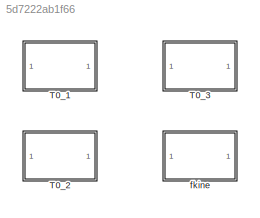
MODEL slx_5d7222ab1f66
KIND library
CONFIG AbsTol = auto
CONFIG EnableMultiTasking = off
CONFIG FixedStep = auto
CONFIG MaxStep = auto
CONFIG MinStep = auto
CONFIG RelTol = 1e-3
CONFIG SampleTimeConstraint = Unconstrained
CONFIG Solver = VariableStepAuto
CONFIG SolverName = VariableStepAuto
CONFIG StartTime = 0.0
CONFIG StopTime = 10.0
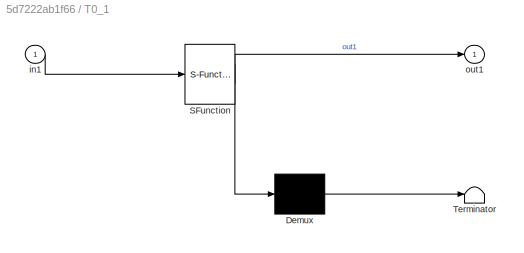
BLOCK [SubSystem] T0_1
  ErrorFcn = Stateflow.Translate.translate
  PermitHierarchicalResolution = ExplicitOnly
  Ports = [1, 1]
  RequestExecContextInheritance = off
  SFBlockType = MATLAB Function
  TreatAsAtomicUnit = on
BLOCK [Demux] T0_1/ Demux 
  Outputs = 1
  Ports = [1, 1]
BLOCK [S-Function] T0_1/ SFunction 
  EnableBusSupport = off
  FunctionName = sf_sfun
  PortCounts = [1 2]
  Ports = [1, 2]
  SFcnIsStateOwnerBlock = off
  SFunctionDeploymentMode = off
  Tag = Stateflow S-Function planar3linkslib 1
BLOCK [Terminator] T0_1/ Terminator 
BLOCK [Inport] T0_1/in1
  IconDisplay = Port number
BLOCK [Outport] T0_1/out1
  IconDisplay = Port number
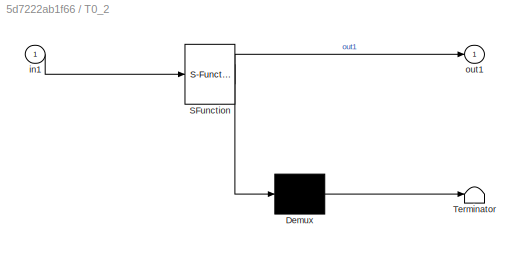
BLOCK [SubSystem] T0_2
  ErrorFcn = Stateflow.Translate.translate
  PermitHierarchicalResolution = ExplicitOnly
  Ports = [1, 1]
  RequestExecContextInheritance = off
  SFBlockType = MATLAB Function
  TreatAsAtomicUnit = on
BLOCK [Demux] T0_2/ Demux 
  Outputs = 1
  Ports = [1, 1]
BLOCK [S-Function] T0_2/ SFunction 
  EnableBusSupport = off
  FunctionName = sf_sfun
  PortCounts = [1 2]
  Ports = [1, 2]
  SFcnIsStateOwnerBlock = off
  SFunctionDeploymentMode = off
  Tag = Stateflow S-Function planar3linkslib 3
BLOCK [Terminator] T0_2/ Terminator 
BLOCK [Inport] T0_2/in1
  IconDisplay = Port number
BLOCK [Outport] T0_2/out1
  IconDisplay = Port number
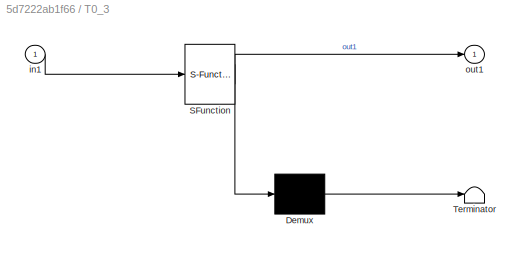
BLOCK [SubSystem] T0_3
  ErrorFcn = Stateflow.Translate.translate
  PermitHierarchicalResolution = ExplicitOnly
  Ports = [1, 1]
  RequestExecContextInheritance = off
  SFBlockType = MATLAB Function
  TreatAsAtomicUnit = on
BLOCK [Demux] T0_3/ Demux 
  Outputs = 1
  Ports = [1, 1]
BLOCK [S-Function] T0_3/ SFunction 
  EnableBusSupport = off
  FunctionName = sf_sfun
  PortCounts = [1 2]
  Ports = [1, 2]
  SFcnIsStateOwnerBlock = off
  SFunctionDeploymentMode = off
  Tag = Stateflow S-Function planar3linkslib 4
BLOCK [Terminator] T0_3/ Terminator 
BLOCK [Inport] T0_3/in1
  IconDisplay = Port number
BLOCK [Outport] T0_3/out1
  IconDisplay = Port number
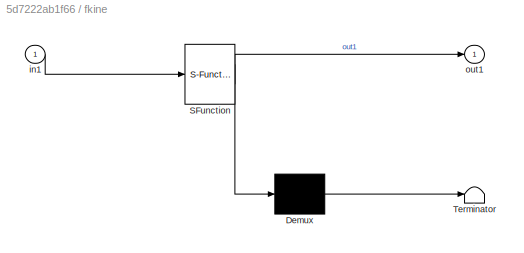
BLOCK [SubSystem] fkine
  ErrorFcn = Stateflow.Translate.translate
  PermitHierarchicalResolution = ExplicitOnly
  Ports = [1, 1]
  RequestExecContextInheritance = off
  SFBlockType = MATLAB Function
  TreatAsAtomicUnit = on
BLOCK [Demux] fkine/ Demux 
  Outputs = 1
  Ports = [1, 1]
BLOCK [S-Function] fkine/ SFunction 
  EnableBusSupport = off
  FunctionName = sf_sfun
  PortCounts = [1 2]
  Ports = [1, 2]
  SFcnIsStateOwnerBlock = off
  SFunctionDeploymentMode = off
  Tag = Stateflow S-Function planar3linkslib 2
BLOCK [Terminator] fkine/ Terminator 
BLOCK [Inport] fkine/in1
  IconDisplay = Port number
BLOCK [Outport] fkine/out1
  IconDisplay = Port number
CHART T0_1 states=1 transitions=1
  STATE_LABEL 'eML_blk_kernel()'
  STATE_LABEL 'SCRIPT:\nfunction out1 = T0_1(in1)\n%#codegen\n\n%    This function was generated by the Symbolic Math Toolbox version 8.1.\n%    19-Aug-2018 15:04:10\n\nq1 = in1(:,1);\nt2 = cos(q1);\nt3 = sin(q1);\nout1 = reshape([t2,t3,0.0,0.0,-t3,t2,0.0,0.0,0.0,0.0,1.0,0.0,t2,t3,0.0,1.0],[4,4]);\n'
CHART fkine states=1 transitions=1
  STATE_LABEL 'eML_blk_kernel()'
  STATE_LABEL 'SCRIPT:\nfunction out1 = fkine(in1)\n%#codegen\n\n%    This function was generated by the Symbolic Math Toolbox version 8.1.\n%    19-Aug-2018 15:04:10\n\nq1 = in1(:,1);\nq2 = in1(:,2);\nq3 = in1(:,3);\nt2 = q1+q2+q3;\nt3 = cos(t2);\nt4 = sin(t2);\nt5 = q1+q2;\nout1 = reshape([t3,t4,0.0,0.0,-t4,t3,0.0,0.0,0.0,0.0,1.0,0.0,t3+cos(q1)+cos(t5),t4+sin(q1)+sin(t5),0.0,1.0],[4,4]);\n'
CHART T0_2 states=1 transitions=1
  STATE_LABEL 'eML_blk_kernel()'
  STATE_LABEL 'SCRIPT:\nfunction out1 = T0_2(in1)\n%#codegen\n\n%    This function was generated by the Symbolic Math Toolbox version 8.1.\n%    19-Aug-2018 15:04:11\n\nq1 = in1(:,1);\nq2 = in1(:,2);\nt2 = cos(q1);\nt3 = sin(q2);\nt4 = cos(q2);\nt5 = sin(q1);\nt6 = t2.*t4;\nt7 = t6-t3.*t5;\nt8 = t2.*t3;\nt9 = t4.*t5;\nout1 = reshape([t7,t8+t9,0.0,0.0,-t2.*t3-t4.*t5,t7,0.0,0.0,0.0,0.0,1.0,0.0,t2+t6-t3.*t5,t5+t8+t9,0.0,1.0],[4,4])...<+2ch>'
CHART T0_3 states=1 transitions=1
  STATE_LABEL 'eML_blk_kernel()'
  STATE_LABEL 'SCRIPT:\nfunction out1 = T0_3(in1)\n%#codegen\n\n%    This function was generated by the Symbolic Math Toolbox version 8.1.\n%    19-Aug-2018 15:04:11\n\nq1 = in1(:,1);\nq2 = in1(:,2);\nq3 = in1(:,3);\nt2 = cos(q1);\nt3 = sin(q2);\nt4 = cos(q2);\nt5 = sin(q1);\nt6 = cos(q3);\nt7 = t2.*t3;\nt8 = t4.*t5;\nt9 = t7+t8;\nt10 = sin(q3);\nt11 = t2.*t4;\nt13 = t3.*t5;\nt12 = t11-t13;\nt14 = t6.*t12;\nt15 = t14-t9.*t10;\nt16 = t6...<+160ch>'
